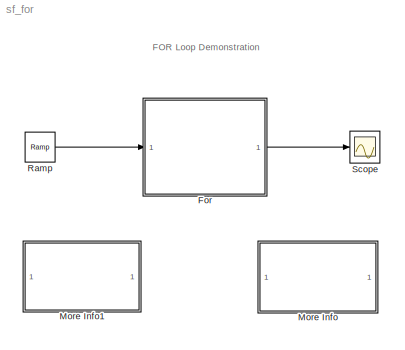
MODEL sf_for
KIND model
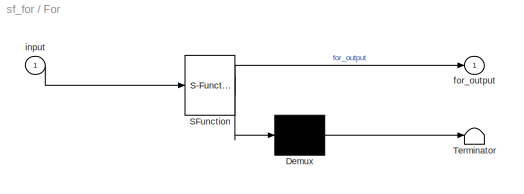
BLOCK [SubSystem] For
  MaskDescription = Stateflow diagram
  MaskDisplay = plot(sf('Private','sfblk','xIcon'),sf('Private','sfblk','yIcon'));text(0.5,0,sf('Private', 'sfblk', 'tIcon'),'HorizontalAl','Center','VerticalAl','Bottom');
  MaskIconFrame = off
  MaskIconOpaque = off
  MaskIconRotate = none
  MaskIconUnits = autoscale
  MaskSelfModifiable = on
  MaskType = Stateflow
  MinAlgLoopOccurrences = off
  Ports = [1, 1]
  PropExecContextAcrossSSBoundary = on
  RTWSystemCode = Auto
  TreatAsAtomicUnit = off
BLOCK [Demux] For/ Demux 
  Outputs = 1
  Ports = [1, 1]
BLOCK [S-Function] For/ SFunction 
  FunctionName = sf_sfun
  PortCounts = [1 2]
  Ports = [1, 2]
  Tag = Stateflow S-Function sf_for 2
BLOCK [Terminator] For/ Terminator 
BLOCK [Outport] For/for_output
  IconDisplay = Port number
BLOCK [Inport] For/input
  IconDisplay = Port number
  LatchInput = off
  Port = 1
BLOCK [SubSystem] More Info
  MaskDisplay = disp('Double click\\nhere for\\ninformation on\\nthis demonstration')
  MaskIconFrame = on
  MaskIconOpaque = on
  MaskIconRotate = none
  MaskIconUnits = autoscale
  MinAlgLoopOccurrences = off
  Ports = []
  PropExecContextAcrossSSBoundary = on
  RTWSystemCode = Auto
  TreatAsAtomicUnit = off
BLOCK [SubSystem] More Info1
  MaskDisplay = disp('Double click\\nhere for<path> Help')
  MaskIconFrame = on
  MaskIconOpaque = on
  MaskIconRotate = none
  MaskIconUnits = autoscale
  MinAlgLoopOccurrences = off
  OpenFcn = simcad(bdroot);
  Ports = []
  PropExecContextAcrossSSBoundary = on
  RTWSystemCode = Auto
  TreatAsAtomicUnit = off
BLOCK [Reference] Ramp  REF=simulink/Sources/Ramp
  Ports = [0, 1]
  ShowPortLabels = on
  SourceBlock = simulink/Sources/Ramp
  SourceType = Ramp
  VectorParams1D = on
  X0 = 0
  slope = 1
  start = 0
BLOCK [Scope] Scope
  DataFormat = StructureWithTime
  NumInputPorts = 1
  Ports = [1]
  TimeRange = 10
  YMax = 2
  YMin = 0
ANNOTATION (root): FOR Loop Demonstration
ANNOTATION More Info: IF Statement
ANNOTATION More Info: With the use of flow charts, Stateflow allows you to create C-Code or M-Code statements such as\nthe FOR loops. This particular demo shows how you can create a simple FOR Loop in Stateflow \nusing an input from Simulink. The equivalent statement in MATLAB is as follows:\n\nfor i=1:20\n for_output = input(i)\nend\nfor_output = 0;\n\nwhere INPUT is a ramp input with a slope of 1 simulated for 10 sec...<+139ch>
LINE For/ Demux :1 -> For/ Terminator :1
LINE For/ SFunction :1 -> For/ Demux :1
LINE For/ SFunction :2 -> For/for_output:1
LINE For/input:1 -> For/ SFunction :1
LINE For:1 -> Scope:1
LINE Ramp:1 -> For:1
CHART For states=1 transitions=3
  STATE_LABEL 'Equivalent M-Code:\\n\\nfor i=1:20\\n   for_output = input(i)\\nend\\nfor_output = 0;'
note: 1 file-system path scrubbed to <path> (not preserved elsewhere — flat text is the only slx artifact)
